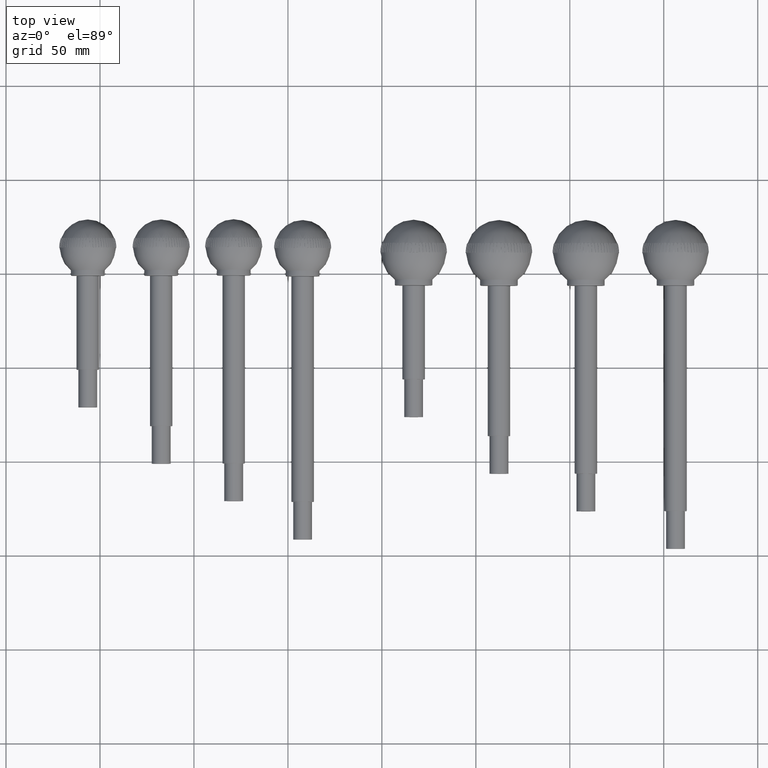
[diagram: clean part render]
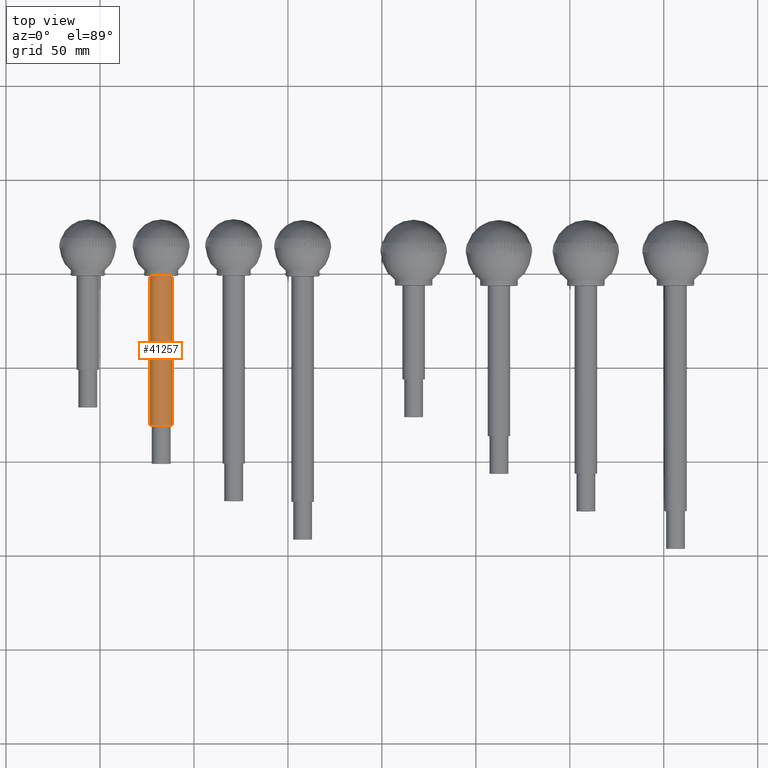
[diagram: same view with one face highlighted and labeled with its STEP entity id]
A machine part, top view. The second image highlights one B-rep face of the part: STEP entity #41257.
In plain terms, the highlighted cylindrical surface (bore or boss wall) has radius 5.975 mm, axis along (0, 1, -0).
Its self-contained STEP definition (entity closure, byte-faithful):
#6474=CYLINDRICAL_SURFACE('',#44780,5.97500000000001);
#6643=FACE_BOUND('',#10354,.T.);
#7697=FACE_OUTER_BOUND('',#10353,.T.);
#10353=EDGE_LOOP('',(#29353));
#10354=EDGE_LOOP('',(#29354));
#13661=CIRCLE('',#44778,5.97500000000001);
#13663=CIRCLE('',#44781,5.97500000000001);
#17605=VERTEX_POINT('',#67695);
#17607=VERTEX_POINT('',#67700);
#22029=EDGE_CURVE('',#17605,#17605,#13661,.T.);
#22031=EDGE_CURVE('',#17607,#17607,#13663,.T.);
#29353=ORIENTED_EDGE('',*,*,#22031,.F.);
#29354=ORIENTED_EDGE('',*,*,#22029,.F.);
#41257=ADVANCED_FACE('',(#7697,#6643),#6474,.T.);
#44778=AXIS2_PLACEMENT_3D('',#67696,#53378,#53379);
#44780=AXIS2_PLACEMENT_3D('',#67699,#53382,#53383);
#44781=AXIS2_PLACEMENT_3D('',#67701,#53384,#53385);
#53378=DIRECTION('center_axis',(1.,0.,0.));
#53379=DIRECTION('ref_axis',(0.,-1.,0.));
#53382=DIRECTION('center_axis',(1.,0.,0.));
#53383=DIRECTION('ref_axis',(0.,1.,0.));
#53384=DIRECTION('center_axis',(-1.,0.,0.));
#53385=DIRECTION('ref_axis',(0.,-1.,0.));
#67695=CARTESIAN_POINT('',(99.8,5.97500000000001,7.31726462490545E-16));
#67696=CARTESIAN_POINT('Origin',(99.8,0.,0.));
#67699=CARTESIAN_POINT('Origin',(60.,0.,0.));
#67700=CARTESIAN_POINT('',(20.2,5.97500000000001,-7.31726462490545E-16));
#67701=CARTESIAN_POINT('Origin',(20.2,0.,0.));